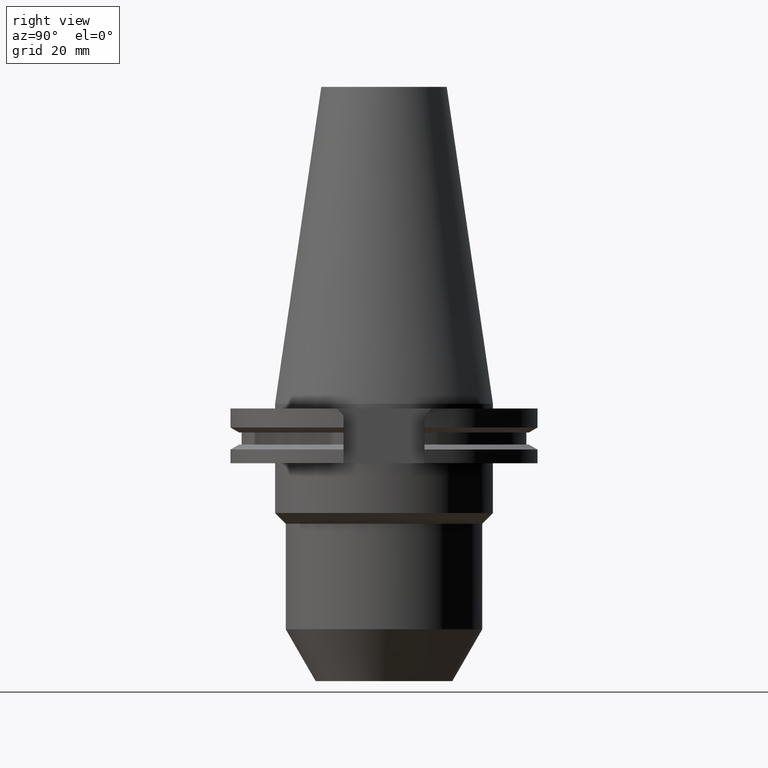
[diagram: clean part render]
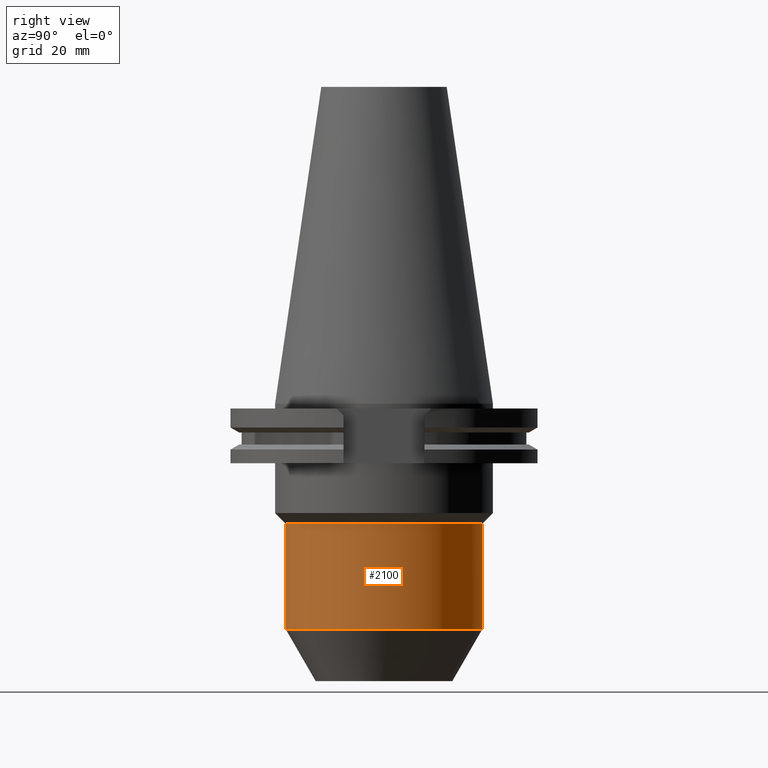
[diagram: same view with one face highlighted and labeled with its STEP entity id]
A machine part, right view. The second image highlights one B-rep face of the part: STEP entity #2100.
In plain terms, the highlighted cylindrical surface (partial cylindrical patch) has radius 31.5 mm, axis along (0, 0, 1).
Its self-contained STEP definition (entity closure, byte-faithful):
#869=CARTESIAN_POINT('',(0.E0,0.E0,-3.843937673804E1));
#870=DIRECTION('',(0.E0,0.E0,-1.E0));
#871=DIRECTION('',(0.E0,1.E0,0.E0));
#872=AXIS2_PLACEMENT_3D('',#869,#870,#871);
#908=DIRECTION('',(0.E0,5.038041149175E-14,-1.E0));
#909=VECTOR('',#908,3.384852396657E1);
#910=CARTESIAN_POINT('',(0.E0,-3.15E1,-3.843937673804E1));
#911=LINE('',#910,#909);
#915=DIRECTION('',(0.E0,-5.038041149175E-14,-1.E0));
#916=VECTOR('',#915,3.384852396657E1);
#917=CARTESIAN_POINT('',(0.E0,3.15E1,-3.843937673804E1));
#918=LINE('',#917,#916);
#929=CARTESIAN_POINT('',(0.E0,0.E0,-7.228790070461E1));
#930=DIRECTION('',(0.E0,0.E0,1.E0));
#931=DIRECTION('',(0.E0,-1.E0,0.E0));
#932=AXIS2_PLACEMENT_3D('',#929,#930,#931);
#1280=CARTESIAN_POINT('',(0.E0,3.15E1,-3.843937673804E1));
#1281=VERTEX_POINT('',#1280);
#1282=CARTESIAN_POINT('',(0.E0,-3.15E1,-3.843937673804E1));
#1283=VERTEX_POINT('',#1282);
#1284=CARTESIAN_POINT('',(0.E0,3.15E1,-7.228790070461E1));
#1285=VERTEX_POINT('',#1284);
#1286=CARTESIAN_POINT('',(0.E0,-3.15E1,-7.228790070461E1));
#1287=VERTEX_POINT('',#1286);
#2088=CARTESIAN_POINT('',(0.E0,0.E0,-9.8425E1));
#2089=DIRECTION('',(0.E0,0.E0,1.E0));
#2090=DIRECTION('',(0.E0,1.E0,0.E0));
#2091=AXIS2_PLACEMENT_3D('',#2088,#2089,#2090);
#2092=CYLINDRICAL_SURFACE('',#2091,3.15E1);
#2093=ORIENTED_EDGE('',*,*,#2078,.T.);
#2095=ORIENTED_EDGE('',*,*,#2094,.F.);
#2096=ORIENTED_EDGE('',*,*,#2081,.F.);
#2097=ORIENTED_EDGE('',*,*,#2052,.F.);
#2098=EDGE_LOOP('',(#2093,#2095,#2096,#2097));
#2099=FACE_OUTER_BOUND('',#2098,.F.);
#873=CIRCLE('',#872,3.15E1);
#933=CIRCLE('',#932,3.15E1);
#2052=EDGE_CURVE('',#1281,#1283,#873,.T.);
#2078=EDGE_CURVE('',#1281,#1285,#918,.T.);
#2081=EDGE_CURVE('',#1283,#1287,#911,.T.);
#2094=EDGE_CURVE('',#1287,#1285,#933,.T.);
#2100=ADVANCED_FACE('',(#2099),#2092,.T.);